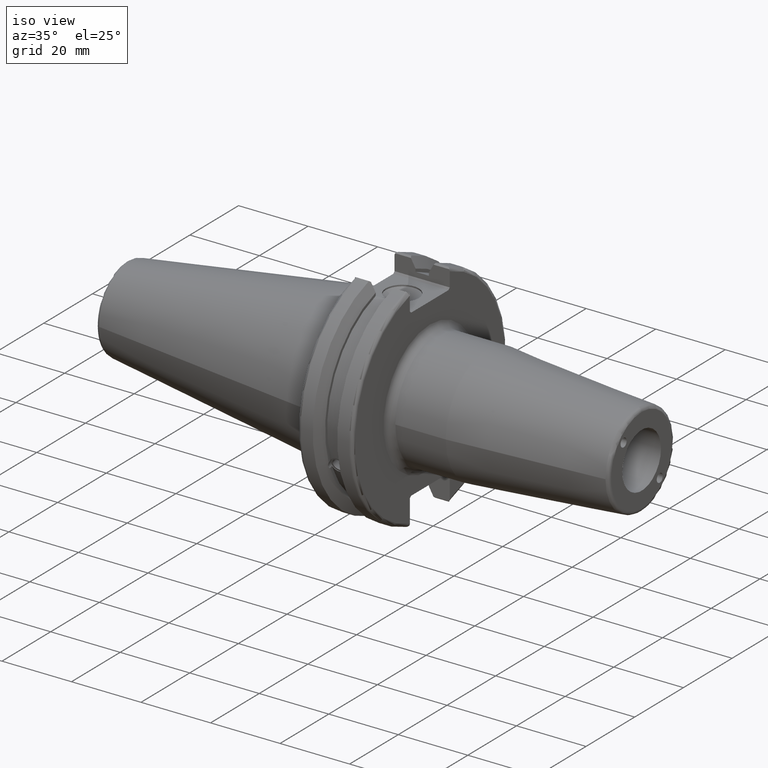
[diagram: clean part render]
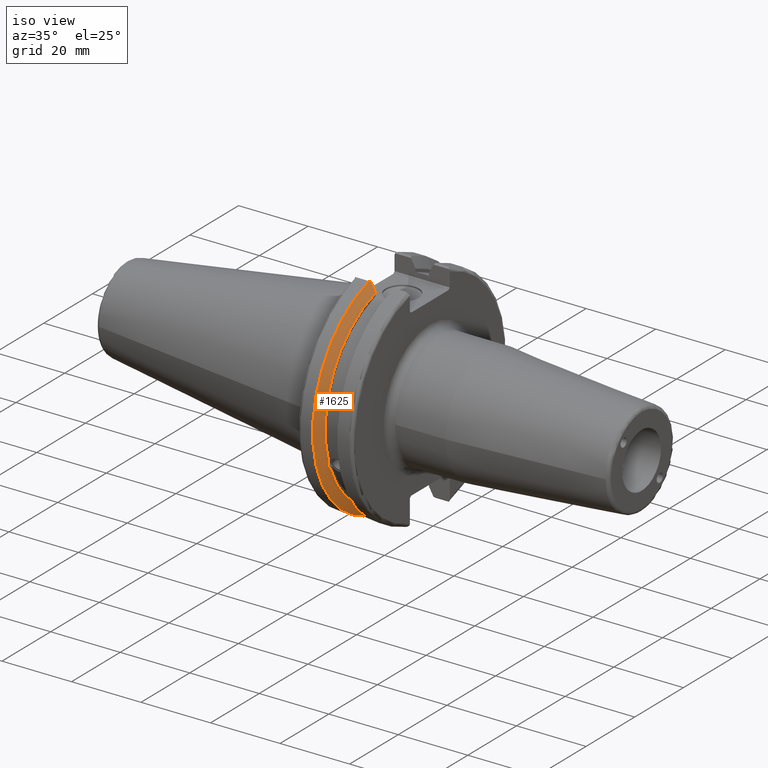
[diagram: same view with one face highlighted and labeled with its STEP entity id]
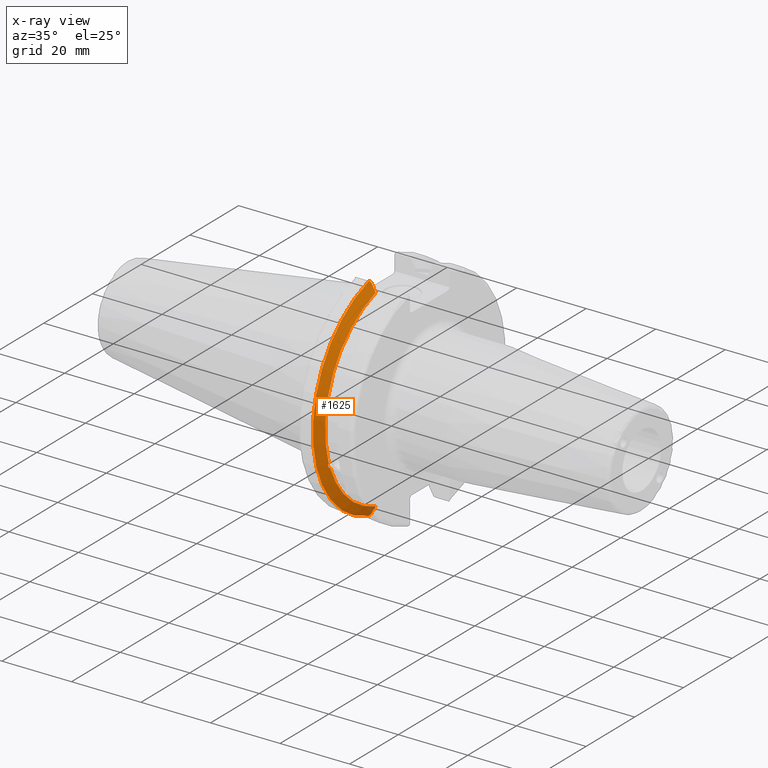
[diagram: x-ray of the same camera — body ghosted, the highlighted face saturated]
A machine part, iso view. The second image highlights one B-rep face of the part: STEP entity #1625.
The next image is the same camera in x-ray: the body ghosted, the highlighted face saturated — about 1% of this face is hidden behind the body in this view.
In plain terms, the highlighted conical surface has half-angle 60 deg.
Its self-contained STEP definition (entity closure, byte-faithful):
#25=(
BOUNDED_CURVE()
B_SPLINE_CURVE(2,(#2925,#2926,#2927),.UNSPECIFIED.,.F.,.F.)
B_SPLINE_CURVE_WITH_KNOTS((3,3),(0.,0.276549142796136),.UNSPECIFIED.)
CURVE()
GEOMETRIC_REPRESENTATION_ITEM()
RATIONAL_B_SPLINE_CURVE((1.,1.00095203903316,1.00031614444813))
REPRESENTATION_ITEM('')
);
#26=(
BOUNDED_CURVE()
B_SPLINE_CURVE(2,(#2937,#2938,#2939),.UNSPECIFIED.,.F.,.F.)
B_SPLINE_CURVE_WITH_KNOTS((3,3),(0.0550586467392022,0.33160778953585),
 .UNSPECIFIED.)
CURVE()
GEOMETRIC_REPRESENTATION_ITEM()
RATIONAL_B_SPLINE_CURVE((1.00031614445148,1.00095203904325,1.))
REPRESENTATION_ITEM('')
);
#27=(
BOUNDED_CURVE()
B_SPLINE_CURVE(2,(#2972,#2973,#2974),.UNSPECIFIED.,.F.,.F.)
B_SPLINE_CURVE_WITH_KNOTS((3,3),(0.,0.0639048713676282),.UNSPECIFIED.)
CURVE()
GEOMETRIC_REPRESENTATION_ITEM()
RATIONAL_B_SPLINE_CURVE((1.,1.00028444218284,1.00047644010574))
REPRESENTATION_ITEM('')
);
#28=(
BOUNDED_CURVE()
B_SPLINE_CURVE(2,(#2980,#2981,#2982),.UNSPECIFIED.,.F.,.F.)
B_SPLINE_CURVE_WITH_KNOTS((3,3),(0.329353533631205,0.393258405001025),
 .UNSPECIFIED.)
CURVE()
GEOMETRIC_REPRESENTATION_ITEM()
RATIONAL_B_SPLINE_CURVE((1.00047644010572,1.00028444218283,1.))
REPRESENTATION_ITEM('')
);
#37=B_SPLINE_CURVE_WITH_KNOTS('',3,(#2535,#2536,#2537,#2538,#2539,#2540,
#2541,#2542,#2543,#2544,#2545,#2546,#2547,#2548),.UNSPECIFIED.,.F.,.F.,
(4,2,2,2,2,2,4),(0.451995700189024,0.464547828547663,0.504528771685167,
0.544509714822672,0.584490657960178,0.624471601097683,0.63702372945632),
 .UNSPECIFIED.);
#264=FACE_OUTER_BOUND('',#373,.T.);
#373=EDGE_LOOP('',(#1509,#1510,#1511,#1512,#1513,#1514,#1515,#1516));
#603=CIRCLE('',#1723,28.9593772964944);
#627=CIRCLE('',#1783,31.75);
#645=CIRCLE('',#1834,28.9593772964944);
#696=VERTEX_POINT('',#2532);
#697=VERTEX_POINT('',#2534);
#714=VERTEX_POINT('',#2627);
#776=VERTEX_POINT('',#2922);
#777=VERTEX_POINT('',#2924);
#780=VERTEX_POINT('',#2936);
#784=VERTEX_POINT('',#2970);
#785=VERTEX_POINT('',#2976);
#870=EDGE_CURVE('',#697,#696,#37,.T.);
#894=EDGE_CURVE('',#697,#714,#603,.T.);
#981=EDGE_CURVE('',#777,#776,#25,.T.);
#987=EDGE_CURVE('',#780,#714,#26,.T.);
#995=EDGE_CURVE('',#784,#776,#27,.T.);
#997=EDGE_CURVE('',#784,#785,#627,.T.);
#998=EDGE_CURVE('',#780,#785,#28,.T.);
#1042=EDGE_CURVE('',#777,#696,#645,.T.);
#1509=ORIENTED_EDGE('',*,*,#870,.T.);
#1510=ORIENTED_EDGE('',*,*,#1042,.F.);
#1511=ORIENTED_EDGE('',*,*,#981,.T.);
#1512=ORIENTED_EDGE('',*,*,#995,.F.);
#1513=ORIENTED_EDGE('',*,*,#997,.T.);
#1514=ORIENTED_EDGE('',*,*,#998,.F.);
#1515=ORIENTED_EDGE('',*,*,#987,.T.);
#1516=ORIENTED_EDGE('',*,*,#894,.F.);
#1535=CONICAL_SURFACE('',#1833,30.3546886482472,1.0471975511966);
#1625=ADVANCED_FACE('',(#264),#1535,.T.);
#1723=AXIS2_PLACEMENT_3D('',#2628,#2018,#2019);
#1783=AXIS2_PLACEMENT_3D('',#2978,#2181,#2182);
#1833=AXIS2_PLACEMENT_3D('',#3098,#2302,#2303);
#1834=AXIS2_PLACEMENT_3D('',#3099,#2304,#2305);
#2018=DIRECTION('center_axis',(1.,0.,0.));
#2019=DIRECTION('ref_axis',(0.,0.,-1.));
#2181=DIRECTION('center_axis',(1.,0.,0.));
#2182=DIRECTION('ref_axis',(0.,0.,-1.));
#2302=DIRECTION('center_axis',(-1.,0.,0.));
#2303=DIRECTION('ref_axis',(0.,-1.,-1.22464679914735E-16));
#2304=DIRECTION('center_axis',(1.,0.,0.));
#2305=DIRECTION('ref_axis',(0.,0.,-1.));
#2532=CARTESIAN_POINT('',(9.2191,-27.4956274489925,-9.09043478536245));
#2534=CARTESIAN_POINT('',(9.2191,-26.9060914640648,-10.7101715919071));
#2535=CARTESIAN_POINT('Ctrl Pts',(9.2191,-26.9060914640648,-10.7101715919071));
#2536=CARTESIAN_POINT('Ctrl Pts',(9.20497959280038,-26.9406927482839,-10.6893765730703));
#2537=CARTESIAN_POINT('Ctrl Pts',(9.19150701821433,-26.9744191989197,-10.6676007180673));
#2538=CARTESIAN_POINT('Ctrl Pts',(9.13811855884095,-27.1113422433189,-10.5723885976054));
#2539=CARTESIAN_POINT('Ctrl Pts',(9.09998029158246,-27.2180531796526,-10.4801333026531));
#2540=CARTESIAN_POINT('Ctrl Pts',(9.04778935539424,-27.3968610665578,-10.2639559818059));
#2541=CARTESIAN_POINT('Ctrl Pts',(9.0341,-27.4684373304961,-10.139516340139));
#2542=CARTESIAN_POINT('Ctrl Pts',(9.0341,-27.559599249844,-9.8890510252165));
#2543=CARTESIAN_POINT('Ctrl Pts',(9.04778935539424,-27.5847569104122,-9.74771639360671));
#2544=CARTESIAN_POINT('Ctrl Pts',(9.09998029158246,-27.5867382255984,-9.46717946402648));
#2545=CARTESIAN_POINT('Ctrl Pts',(9.13811855884095,-27.5642934663232,-9.32791534028655));
#2546=CARTESIAN_POINT('Ctrl Pts',(9.19150701821434,-27.5206055003512,-9.16696618806877));
#2547=CARTESIAN_POINT('Ctrl Pts',(9.20497959280038,-27.5087667900418,-9.12860597076217));
#2548=CARTESIAN_POINT('Ctrl Pts',(9.2191,-27.4956274489925,-9.09043478536245));
#2627=CARTESIAN_POINT('',(9.2191,-8.19,-27.7771386827498));
#2628=CARTESIAN_POINT('Origin',(9.2191,0.,0.));
#2922=CARTESIAN_POINT('',(7.88668530351257,-8.19,30.1755016258903));
#2924=CARTESIAN_POINT('',(9.2191,-8.19,27.7771386827498));
#2925=CARTESIAN_POINT('Ctrl Pts',(9.2191,-8.19,27.7771386827498));
#2926=CARTESIAN_POINT('Ctrl Pts',(8.58046356152393,-8.19,28.9303689539705));
#2927=CARTESIAN_POINT('Ctrl Pts',(7.88668530351257,-8.19,30.1755016258903));
#2936=CARTESIAN_POINT('',(7.88668530351256,-8.19,-30.1755016258903));
#2937=CARTESIAN_POINT('Ctrl Pts',(7.88668530351256,-8.19,-30.1755016258903));
#2938=CARTESIAN_POINT('Ctrl Pts',(8.5804635615235,-8.19,-28.9303689539712));
#2939=CARTESIAN_POINT('Ctrl Pts',(9.2191,-8.19,-27.7771386827498));
#2970=CARTESIAN_POINT('',(7.60793323092436,-8.67204822802685,30.5427254764662));
#2972=CARTESIAN_POINT('Ctrl Pts',(7.60793323092436,-8.67204822802686,30.5427254764662));
#2973=CARTESIAN_POINT('Ctrl Pts',(7.74899148121626,-8.42917748262648,30.357706789263));
#2974=CARTESIAN_POINT('Ctrl Pts',(7.88668530351257,-8.19,30.1755016258903));
#2976=CARTESIAN_POINT('',(7.60793323092436,-8.67204822802685,-30.5427254764662));
#2978=CARTESIAN_POINT('Origin',(7.60793323092436,0.,0.));
#2980=CARTESIAN_POINT('Ctrl Pts',(7.88668530351256,-8.19,-30.1755016258903));
#2981=CARTESIAN_POINT('Ctrl Pts',(7.74899148121159,-8.42917748263467,-30.3577067892692));
#2982=CARTESIAN_POINT('Ctrl Pts',(7.60793323092435,-8.67204822802687,-30.5427254764662));
#3098=CARTESIAN_POINT('Origin',(8.41351661546218,0.,0.));
#3099=CARTESIAN_POINT('Origin',(9.2191,0.,0.));